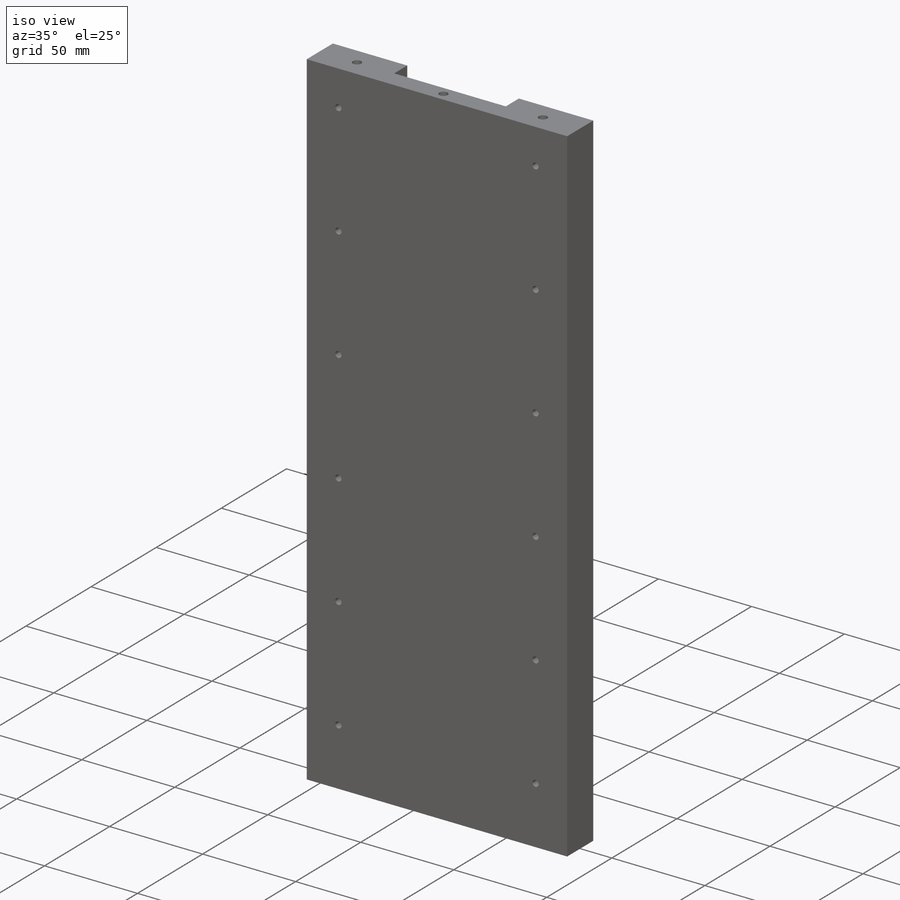
[diagram: iso view]
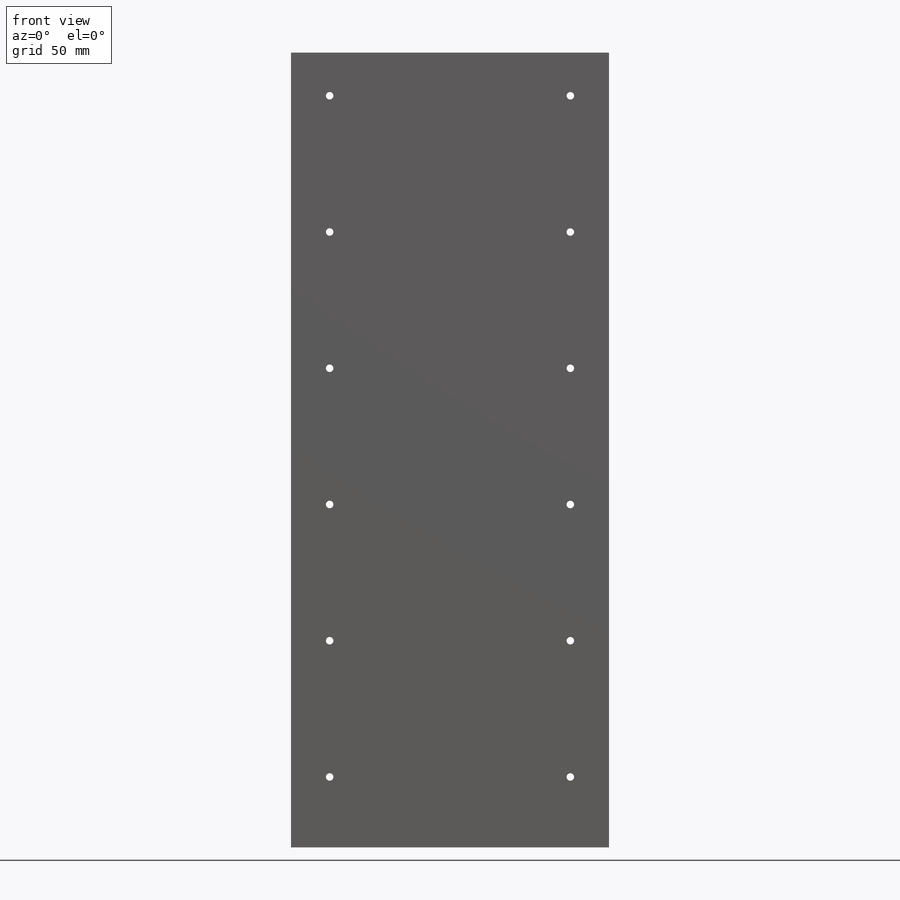
[diagram: front view]
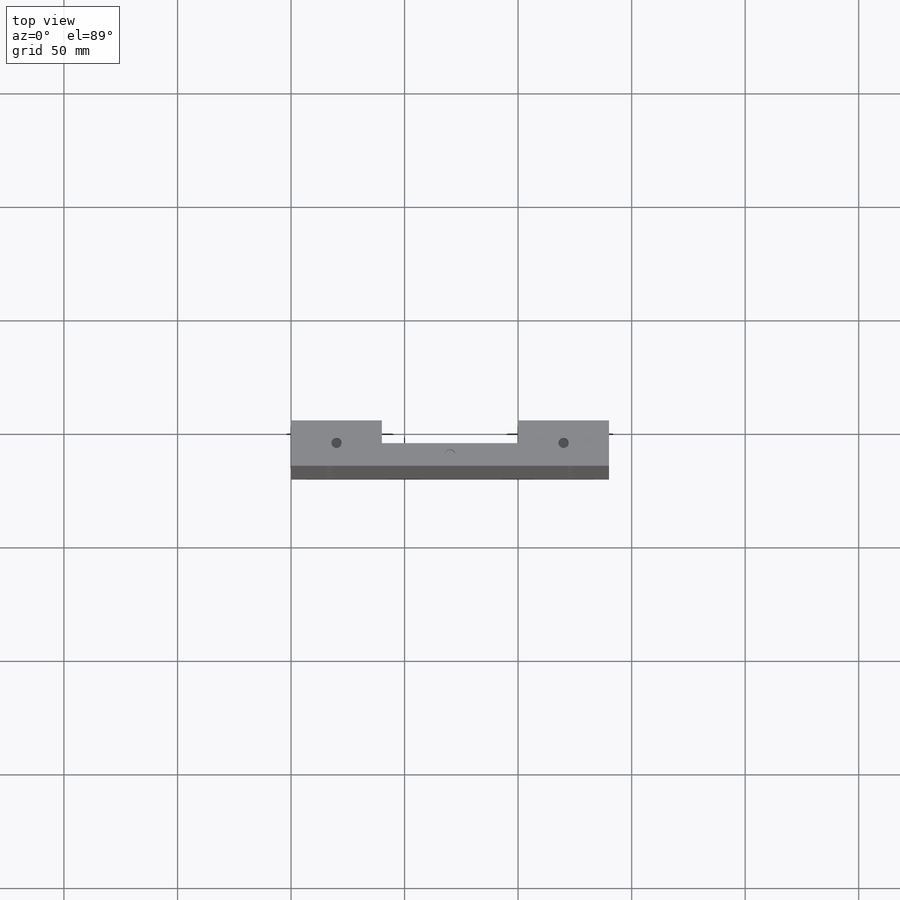
[diagram: top view]
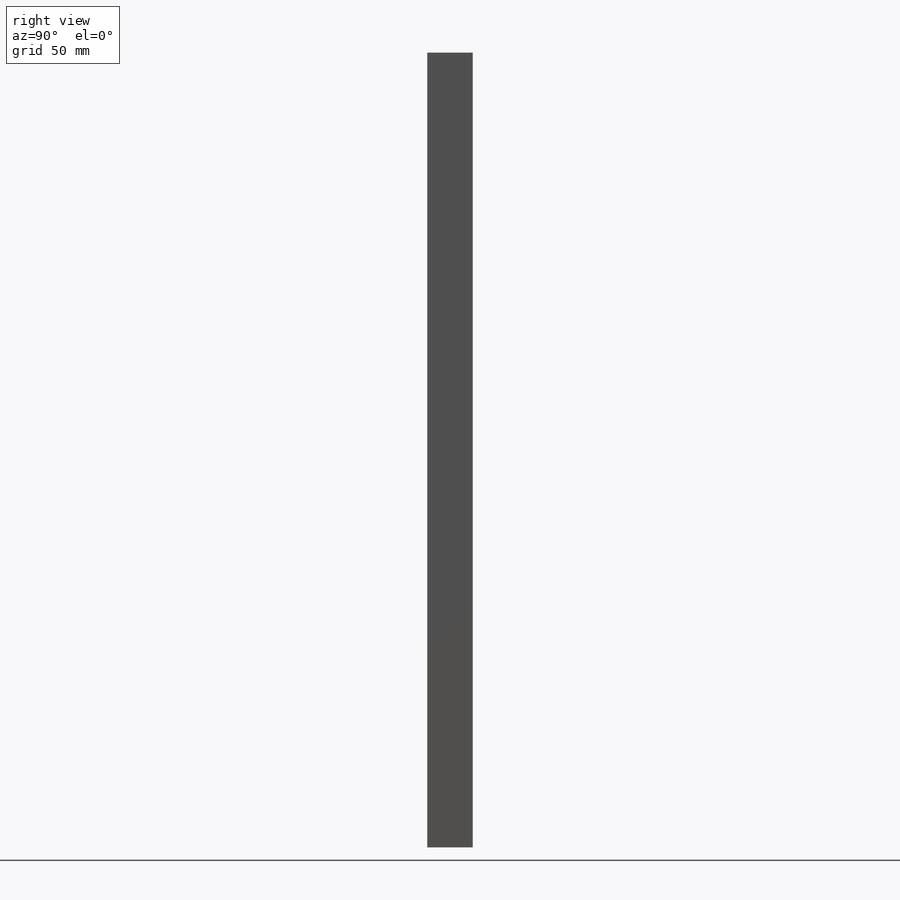
[diagram: right view]
SOLIDWORKS PART (.sldprt)
format: sldprt  version: not decoded by parser v0  size: 319,488 bytes
history: native  units: mm
features: sketch x5, cut_extrude x4, material x1, extrude x1 (+12 scaffold rows collapsed)
feature tree (23):
  scaffold x12  (default folders/planes/origin — collapsed)
  material  "7079 Alloy"
  sketch  "Sketch1"  dims[c1.D3=~2.465369mm c1.D1=350.0mm c1.D2=140.0mm c2.D3=17.0mm]
  extrude  "Extrude1"  Depth=20mm
  sketch  "Sketch3"  dims[D1=60.0mm]
  cut_extrude  "Cut-Extrude2"  Depth=10mm
  sketch  "Sketch4"  dims[D1=2.5mm]
  cut_extrude  "Cut-Extrude3"  Depth=15mm
  sketch  "Sketch6"  dims[D1=2.5mm]
  cut_extrude  "Cut-Extrude5"  Depth=15mm
  sketch  "Sketch7"  dims[c1.D1=~3.044672mm c1.D3=2.0mm c1.D5=~4.073162mm c2.D1=20.0mm c2.D2=20.0mm c2.D3=20.0mm c3.D1=31.0mm c3.D2=31.0mm c3.D3=19.0mm c3.D4=19.0mm c3.D5=19.0mm]
  cut_extrude  "Cut-Extrude6"  Depth=20mm
decode coverage: 10 of 10 modeling features carry decoded parameters
note: ~ marks probable driven/reference dimensions
note: suppression state not decoded; provenance and decode notes live in map.json
